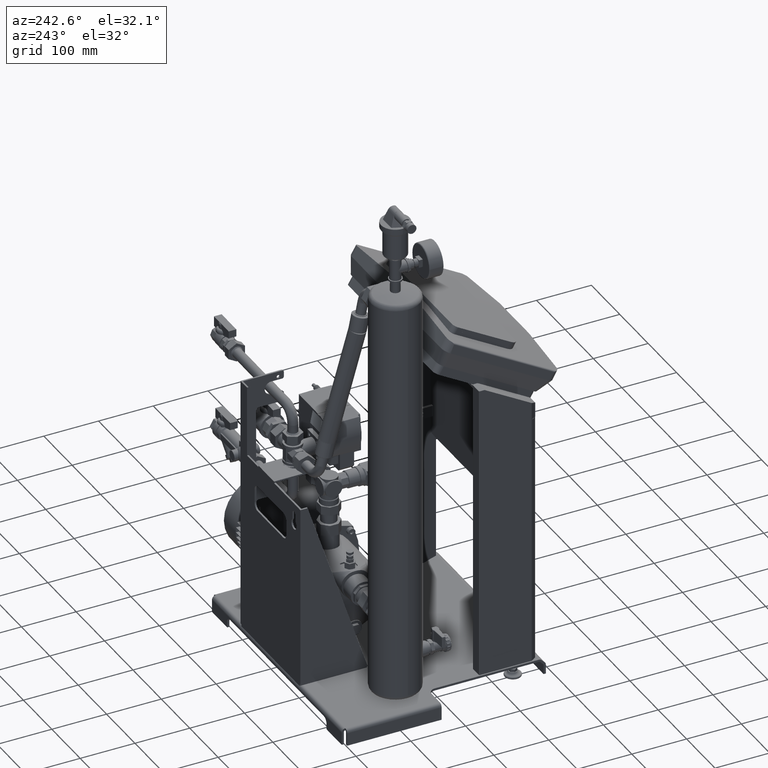
[diagram: clean part render]
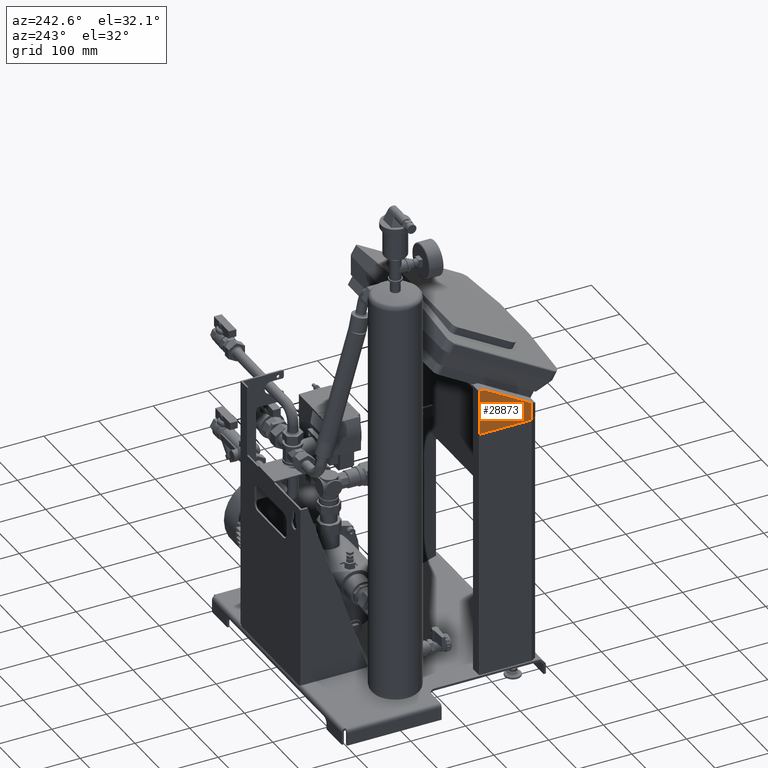
[diagram: same view with one face highlighted and labeled with its STEP entity id]
A machine part, auxiliary view. The second image highlights one B-rep face of the part: STEP entity #28873.
In plain terms, the highlighted face is a freeform B-spline surface patch.
Its self-contained STEP definition (entity closure, byte-faithful):
#28249=CARTESIAN_POINT('',(-140.30669703567031,-251.2303243909997,489.75007423500006));
#28250=VERTEX_POINT('',#28249);
#28258=CARTESIAN_POINT('',(-140.30669703567031,-156.89549911949265,489.75007423500006));
#28259=VERTEX_POINT('',#28258);
#28260=CARTESIAN_POINT('',(-140.30669703567031,-251.2303243909997,489.75007423500006));
#28261=DIRECTION('',(0.0,1.0,0.0));
#28262=VECTOR('',#28261,94.334825271507043);
#28263=LINE('',#28260,#28262);
#28264=EDGE_CURVE('',#28250,#28259,#28263,.T.);
#28341=CARTESIAN_POINT('',(-140.30669703567031,-165.59075534908354,571.75007423500017));
#28342=VERTEX_POINT('',#28341);
#28349=CARTESIAN_POINT('',(-140.30669703567031,-251.2303243909997,522.30604599536616));
#28350=VERTEX_POINT('',#28349);
#28351=CARTESIAN_POINT('',(-140.30669703567031,-165.59075534908348,571.75007423500006));
#28352=DIRECTION('',(0.0,-0.866025403784439,-0.5));
#28353=VECTOR('',#28352,98.888056479267775);
#28354=LINE('',#28351,#28353);
#28355=EDGE_CURVE('',#28342,#28350,#28354,.T.);
#28832=CARTESIAN_POINT('',(-140.30669703567031,-156.89549911949265,571.75007423500017));
#28833=VERTEX_POINT('',#28832);
#28834=CARTESIAN_POINT('',(-140.30669703567031,-156.89549911949265,489.75007423500006));
#28835=DIRECTION('',(0.0,0.0,1.0));
#28836=VECTOR('',#28835,82.000000000000114);
#28837=LINE('',#28834,#28836);
#28838=EDGE_CURVE('',#28259,#28833,#28837,.T.);
#28851=CARTESIAN_POINT('',(-140.30669703567031,-251.23032439099973,571.75007423500017));
#28852=CARTESIAN_POINT('',(-140.30669703567031,-156.89549911949265,571.75007423500017));
#28853=CARTESIAN_POINT('',(-140.30669703567031,-251.23032439099973,489.75007423500006));
#28854=CARTESIAN_POINT('',(-140.30669703567031,-156.89549911949268,489.75007423499994));
#28855=B_SPLINE_SURFACE_WITH_KNOTS('',1,1,((#28851,#28853),(#28852,#28854)),.UNSPECIFIED.,.F.,.F.,.U.,(2,2),(2,2),(0.0,94.334825271507071),(0.0,82.000000000000114),.UNSPECIFIED.);
#28856=ORIENTED_EDGE('',*,*,#28355,.F.);
#28857=CARTESIAN_POINT('',(-140.30669703567031,-165.59075534908354,571.75007423500017));
#28858=DIRECTION('',(0.0,1.0,0.0));
#28859=VECTOR('',#28858,8.695256229590882);
#28860=LINE('',#28857,#28859);
#28861=EDGE_CURVE('',#28342,#28833,#28860,.T.);
#28862=ORIENTED_EDGE('',*,*,#28861,.T.);
#28863=ORIENTED_EDGE('',*,*,#28838,.F.);
#28864=ORIENTED_EDGE('',*,*,#28264,.F.);
#28865=CARTESIAN_POINT('',(-140.30669703567031,-251.2303243909997,489.75007423500006));
#28866=DIRECTION('',(0.0,0.0,1.0));
#28867=VECTOR('',#28866,32.555971760366106);
#28868=LINE('',#28865,#28867);
#28869=EDGE_CURVE('',#28250,#28350,#28868,.T.);
#28870=ORIENTED_EDGE('',*,*,#28869,.T.);
#28871=EDGE_LOOP('',(#28856,#28862,#28863,#28864,#28870));
#28872=FACE_OUTER_BOUND('',#28871,.T.);
#28873=ADVANCED_FACE('',(#28872),#28855,.T.);